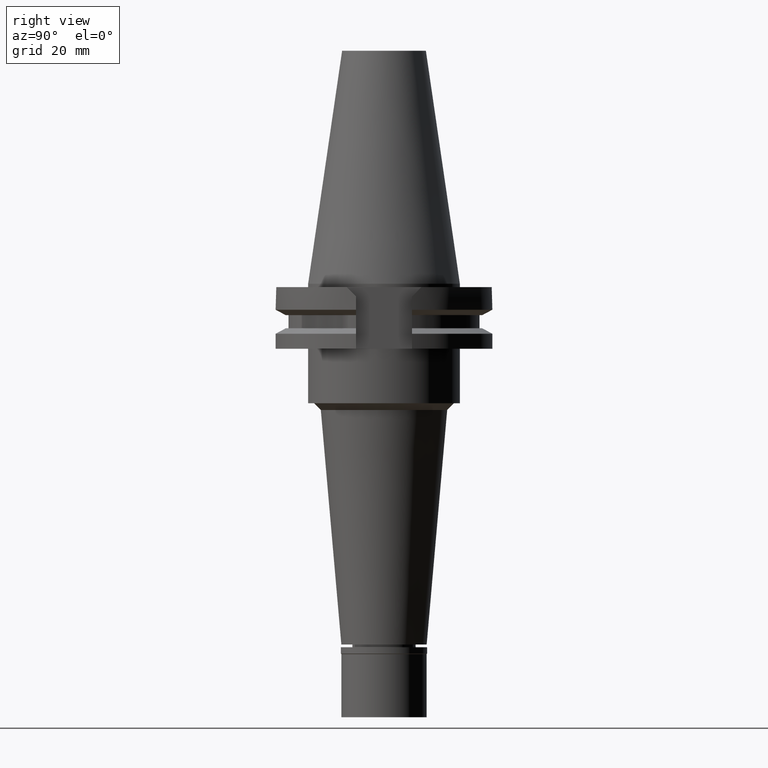
[diagram: clean part render]
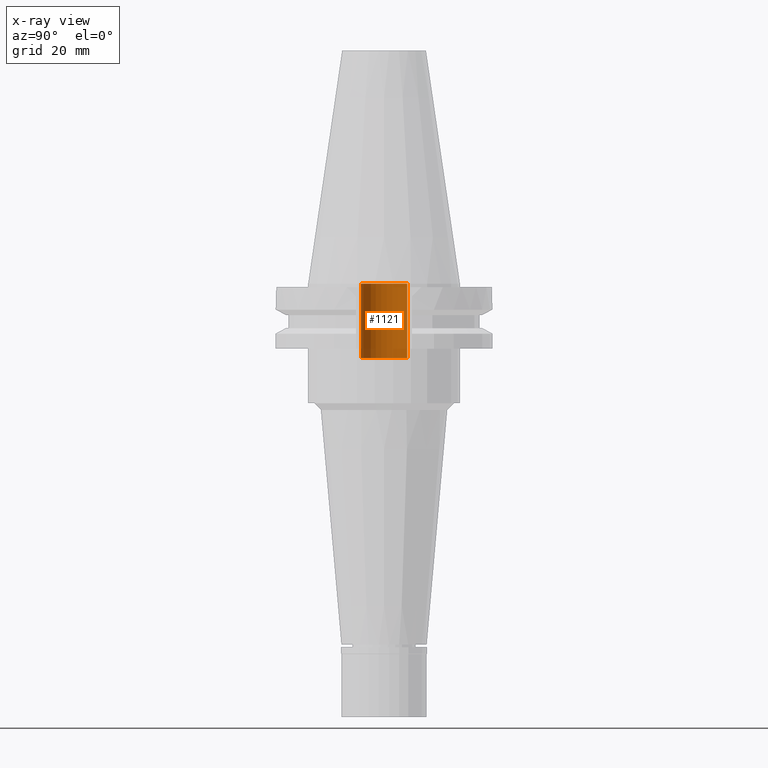
[diagram: x-ray — body ghosted, one internal face saturated and labeled with its STEP entity id]
A machine part, right view, then the same camera in x-ray: the body is ghosted and one INTERNAL B-rep face — a face not visible from any outside direction — is saturated and labeled: STEP entity #1121.
In plain terms, the highlighted cylindrical surface (edge-blend (fillet) strip) has radius 6.8 mm, axis along (0, 0, -1).
Its self-contained STEP definition (entity closure, byte-faithful):
#14 = CARTESIAN_POINT ( 'NONE',  ( 0.0000000000000000000, 2.176227978254999912E-14, -21.75000000000000000 ) ) ;
#48 = CARTESIAN_POINT ( 'NONE',  ( 0.0000000000000000000, 2.176227978254999912E-14, 77.70250000000000057 ) ) ;
#70 = DIRECTION ( 'NONE',  ( 0.0000000000000000000, 0.0000000000000000000, -1.000000000000000000 ) ) ;
#78 = LINE ( 'NONE', #333, #1313 ) ;
#102 = DIRECTION ( 'NONE',  ( 0.0000000000000000000, -1.000000000000000000, 0.0000000000000000000 ) ) ;
#112 = EDGE_CURVE ( 'NONE', #2541, #1605, #78, .T. ) ;
#192 = LINE ( 'NONE', #453, #991 ) ;
#260 = VERTEX_POINT ( 'NONE', #3252 ) ;
#333 = CARTESIAN_POINT ( 'NONE',  ( 0.0000000000000000000, 6.799999999999999822, -21.75000000000000000 ) ) ;
#366 = DIRECTION ( 'NONE',  ( 0.0000000000000000000, 0.0000000000000000000, 1.000000000000000000 ) ) ;
#453 = CARTESIAN_POINT ( 'NONE',  ( 0.0000000000000000000, -6.799999999999999822, -21.75000000000000000 ) ) ;
#770 = CIRCLE ( 'NONE', #3108, 6.799999999999999822 ) ;
#837 = CYLINDRICAL_SURFACE ( 'NONE', #1102, 6.799999999999999822 ) ;
#854 = EDGE_CURVE ( 'NONE', #260, #1605, #770, .T. ) ;
#895 = CARTESIAN_POINT ( 'NONE',  ( 0.0000000000000000000, -6.799999999999999822, -21.75000000000000000 ) ) ;
#991 = VECTOR ( 'NONE', #2566, 1000.000000000000000 ) ;
#1088 = DIRECTION ( 'NONE',  ( 0.0000000000000000000, 0.0000000000000000000, -1.000000000000000000 ) ) ;
#1102 = AXIS2_PLACEMENT_3D ( 'NONE', #48, #1088, #2135 ) ;
#1121 = ADVANCED_FACE ( 'NONE', ( #2406 ), #837, .F. ) ;
#1134 = EDGE_CURVE ( 'NONE', #2554, #2541, #2410, .T. ) ;
#1144 = DIRECTION ( 'NONE',  ( 0.0000000000000000000, 0.0000000000000000000, -1.000000000000000000 ) ) ;
#1313 = VECTOR ( 'NONE', #366, 1000.000000000000000 ) ;
#1314 = ORIENTED_EDGE ( 'NONE', *, *, #1134, .T. ) ;
#1333 = DIRECTION ( 'NONE',  ( 0.0000000000000000000, -1.000000000000000000, 0.0000000000000000000 ) ) ;
#1605 = VERTEX_POINT ( 'NONE', #3354 ) ;
#2135 = DIRECTION ( 'NONE',  ( 0.0000000000000000000, -1.000000000000000000, 0.0000000000000000000 ) ) ;
#2148 = EDGE_CURVE ( 'NONE', #2554, #260, #192, .T. ) ;
#2395 = CARTESIAN_POINT ( 'NONE',  ( 0.0000000000000000000, 6.799999999999999822, -21.75000000000000000 ) ) ;
#2406 = FACE_OUTER_BOUND ( 'NONE', #3089, .T. ) ;
#2410 = CIRCLE ( 'NONE', #2787, 6.799999999999999822 ) ;
#2439 = CARTESIAN_POINT ( 'NONE',  ( 0.0000000000000000000, 2.176227978254999912E-14, -5.684341886080998387E-14 ) ) ;
#2541 = VERTEX_POINT ( 'NONE', #2395 ) ;
#2554 = VERTEX_POINT ( 'NONE', #895 ) ;
#2566 = DIRECTION ( 'NONE',  ( 0.0000000000000000000, 0.0000000000000000000, 1.000000000000000000 ) ) ;
#2617 = ORIENTED_EDGE ( 'NONE', *, *, #112, .T. ) ;
#2629 = ORIENTED_EDGE ( 'NONE', *, *, #2148, .F. ) ;
#2787 = AXIS2_PLACEMENT_3D ( 'NONE', #14, #70, #1333 ) ;
#2881 = ORIENTED_EDGE ( 'NONE', *, *, #854, .F. ) ;
#3089 = EDGE_LOOP ( 'NONE', ( #2881, #2629, #1314, #2617 ) ) ;
#3108 = AXIS2_PLACEMENT_3D ( 'NONE', #2439, #1144, #102 ) ;
#3252 = CARTESIAN_POINT ( 'NONE',  ( 0.0000000000000000000, -6.799999999999999822, -4.263256414560999963E-14 ) ) ;
#3354 = CARTESIAN_POINT ( 'NONE',  ( 0.0000000000000000000, 6.799999999999999822, -4.263256414560999963E-14 ) ) ;